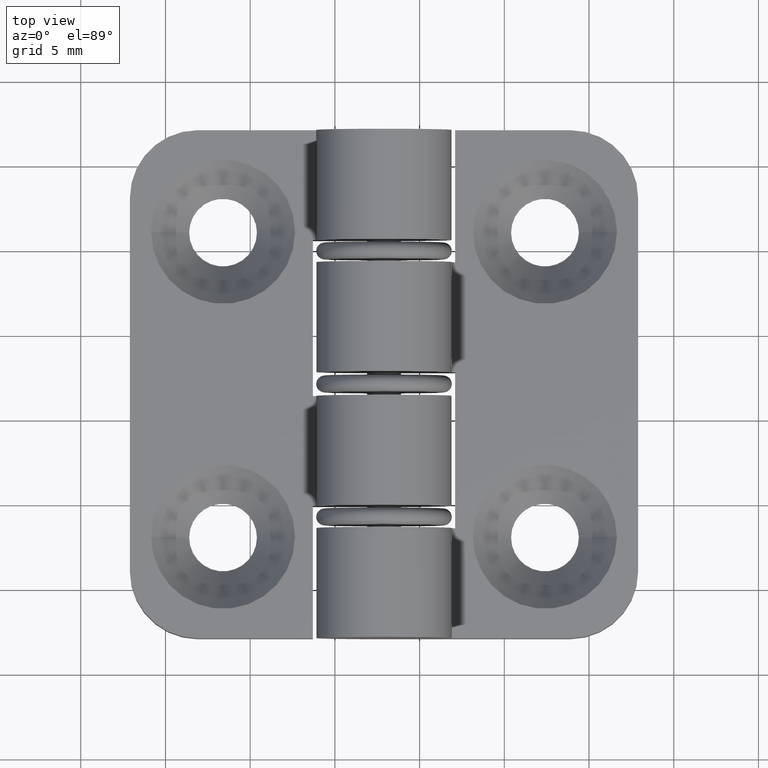
[diagram: clean part render]
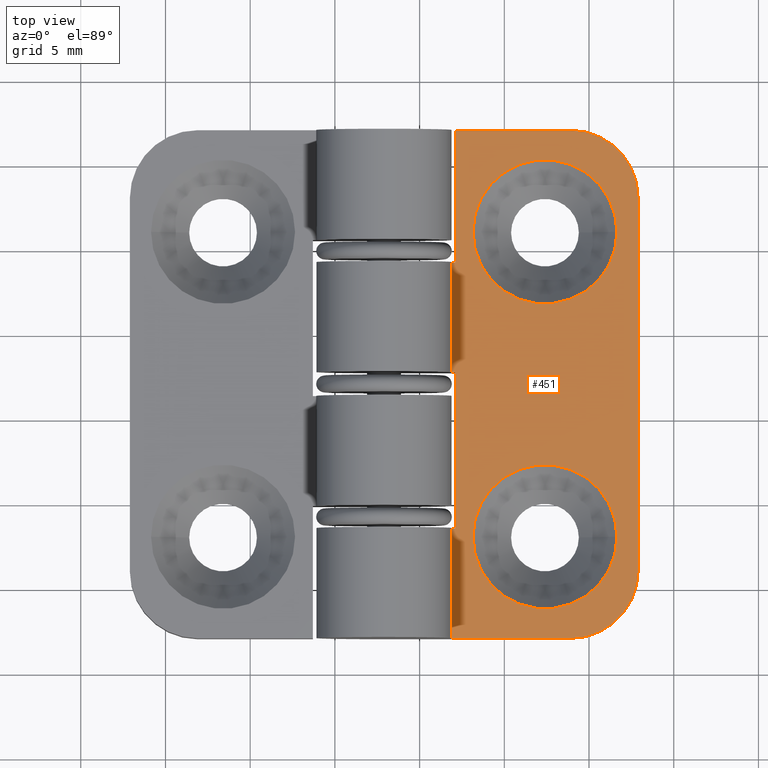
[diagram: same view with one face highlighted and labeled with its STEP entity id]
A machine part, top view. The second image highlights one B-rep face of the part: STEP entity #451.
In plain terms, the highlighted planar face has unit normal (-0, -0, 1).
Its self-contained STEP definition (entity closure, byte-faithful):
#37=LINE('',#700,#65);
#41=LINE('',#708,#69);
#43=LINE('',#716,#71);
#45=LINE('',#725,#73);
#48=LINE('',#735,#76);
#51=LINE('',#741,#79);
#52=LINE('',#743,#80);
#53=LINE('',#747,#81);
#54=LINE('',#750,#82);
#55=LINE('',#751,#83);
#65=VECTOR('',#555,9.2);
#69=VECTOR('',#561,0.327016653792582);
#71=VECTOR('',#569,0.327016653792584);
#73=VECTOR('',#577,0.327016653792582);
#76=VECTOR('',#586,7.79999999999999);
#79=VECTOR('',#591,6.5);
#80=VECTOR('',#592,7.12701665379258);
#81=VECTOR('',#595,22.);
#82=VECTOR('',#598,6.8);
#83=VECTOR('',#599,6.5);
#123=FACE_BOUND('',#179,.T.);
#124=FACE_BOUND('',#180,.T.);
#144=FACE_OUTER_BOUND('',#178,.T.);
#178=EDGE_LOOP('',(#355,#356,#357,#358,#359,#360,#361,#362,#363,#364,#365,
#366));
#179=EDGE_LOOP('',(#367));
#180=EDGE_LOOP('',(#368));
#218=CIRCLE('',#494,4.);
#219=CIRCLE('',#495,4.);
#220=CIRCLE('',#496,4.25);
#221=CIRCLE('',#497,4.25);
#236=VERTEX_POINT('',#698);
#237=VERTEX_POINT('',#699);
#240=VERTEX_POINT('',#707);
#243=VERTEX_POINT('',#715);
#246=VERTEX_POINT('',#723);
#247=VERTEX_POINT('',#724);
#251=VERTEX_POINT('',#734);
#253=VERTEX_POINT('',#740);
#254=VERTEX_POINT('',#742);
#255=VERTEX_POINT('',#744);
#256=VERTEX_POINT('',#746);
#257=VERTEX_POINT('',#748);
#258=VERTEX_POINT('',#752);
#259=VERTEX_POINT('',#754);
#276=EDGE_CURVE('',#236,#237,#37,.T.);
#280=EDGE_CURVE('',#237,#240,#41,.T.);
#284=EDGE_CURVE('',#243,#236,#43,.T.);
#288=EDGE_CURVE('',#246,#247,#45,.T.);
#293=EDGE_CURVE('',#251,#246,#48,.T.);
#296=EDGE_CURVE('',#253,#240,#51,.T.);
#297=EDGE_CURVE('',#253,#254,#52,.T.);
#298=EDGE_CURVE('',#255,#254,#218,.T.);
#299=EDGE_CURVE('',#255,#256,#53,.T.);
#300=EDGE_CURVE('',#257,#256,#219,.T.);
#301=EDGE_CURVE('',#251,#257,#54,.T.);
#302=EDGE_CURVE('',#243,#247,#55,.T.);
#303=EDGE_CURVE('',#258,#258,#220,.T.);
#304=EDGE_CURVE('',#259,#259,#221,.T.);
#355=ORIENTED_EDGE('',*,*,#284,.T.);
#356=ORIENTED_EDGE('',*,*,#276,.T.);
#357=ORIENTED_EDGE('',*,*,#280,.T.);
#358=ORIENTED_EDGE('',*,*,#296,.F.);
#359=ORIENTED_EDGE('',*,*,#297,.T.);
#360=ORIENTED_EDGE('',*,*,#298,.F.);
#361=ORIENTED_EDGE('',*,*,#299,.T.);
#362=ORIENTED_EDGE('',*,*,#300,.F.);
#363=ORIENTED_EDGE('',*,*,#301,.F.);
#364=ORIENTED_EDGE('',*,*,#293,.T.);
#365=ORIENTED_EDGE('',*,*,#288,.T.);
#366=ORIENTED_EDGE('',*,*,#302,.F.);
#367=ORIENTED_EDGE('',*,*,#303,.T.);
#368=ORIENTED_EDGE('',*,*,#304,.T.);
#435=PLANE('',#493);
#451=ADVANCED_FACE('',(#144,#123,#124),#435,.T.);
#493=AXIS2_PLACEMENT_3D('',#739,#589,#590);
#494=AXIS2_PLACEMENT_3D('',#745,#593,#594);
#495=AXIS2_PLACEMENT_3D('',#749,#596,#597);
#496=AXIS2_PLACEMENT_3D('',#753,#600,#601);
#497=AXIS2_PLACEMENT_3D('',#755,#602,#603);
#555=DIRECTION('',(1.70803542250024E-16,-1.,0.));
#561=DIRECTION('',(-1.,0.,0.));
#569=DIRECTION('',(1.,-2.70786103567111E-16,0.));
#577=DIRECTION('',(-1.,0.,0.));
#586=DIRECTION('',(1.70803542250024E-16,-1.,0.));
#589=DIRECTION('center_axis',(0.,0.,1.));
#590=DIRECTION('ref_axis',(1.,0.,0.));
#591=DIRECTION('',(0.,1.,0.));
#592=DIRECTION('',(1.,0.,0.));
#593=DIRECTION('center_axis',(0.,0.,-1.));
#594=DIRECTION('ref_axis',(0.707106781186548,-0.707106781186548,0.));
#595=DIRECTION('',(0.,1.,0.));
#596=DIRECTION('center_axis',(0.,0.,-1.));
#597=DIRECTION('ref_axis',(0.707106781186548,0.707106781186547,0.));
#598=DIRECTION('',(1.,0.,0.));
#599=DIRECTION('',(0.,1.,0.));
#600=DIRECTION('center_axis',(0.,0.,-1.));
#601=DIRECTION('ref_axis',(1.,0.,0.));
#602=DIRECTION('center_axis',(0.,0.,-1.));
#603=DIRECTION('ref_axis',(1.,0.,0.));
#698=CARTESIAN_POINT('',(-10.8,15.7,3.));
#699=CARTESIAN_POINT('',(-10.8,6.5,3.));
#700=CARTESIAN_POINT('',(-10.8,15.,3.));
#707=CARTESIAN_POINT('',(-11.1270166537926,6.5,3.));
#708=CARTESIAN_POINT('',(-10.9635083268963,6.5,3.));
#715=CARTESIAN_POINT('',(-11.1270166537926,15.7,3.));
#716=CARTESIAN_POINT('',(-10.9635083268963,15.7,3.));
#723=CARTESIAN_POINT('',(-10.8,22.2,3.));
#724=CARTESIAN_POINT('',(-11.1270166537926,22.2,3.));
#725=CARTESIAN_POINT('',(-15.0635083268963,22.2,3.));
#734=CARTESIAN_POINT('',(-10.8,30.,3.));
#735=CARTESIAN_POINT('',(-10.8,15.,3.));
#739=CARTESIAN_POINT('Origin',(-11.1270166537926,0.,3.));
#740=CARTESIAN_POINT('',(-11.1270166537926,0.,3.));
#741=CARTESIAN_POINT('',(-11.1270166537926,0.,3.));
#742=CARTESIAN_POINT('',(-4.,0.,3.));
#743=CARTESIAN_POINT('',(-11.1270166537926,0.,3.));
#744=CARTESIAN_POINT('',(0.,4.,3.));
#745=CARTESIAN_POINT('Origin',(-4.,4.,3.));
#746=CARTESIAN_POINT('',(0.,26.,3.));
#747=CARTESIAN_POINT('',(0.,0.,3.));
#748=CARTESIAN_POINT('',(-4.,30.,3.));
#749=CARTESIAN_POINT('Origin',(-4.,26.,3.));
#750=CARTESIAN_POINT('',(-11.1270166537926,30.,3.));
#751=CARTESIAN_POINT('',(-11.1270166537926,0.,3.));
#752=CARTESIAN_POINT('',(-1.25,6.,3.));
#753=CARTESIAN_POINT('Origin',(-5.5,6.,3.));
#754=CARTESIAN_POINT('',(-1.25,24.,3.));
#755=CARTESIAN_POINT('Origin',(-5.5,24.,3.));